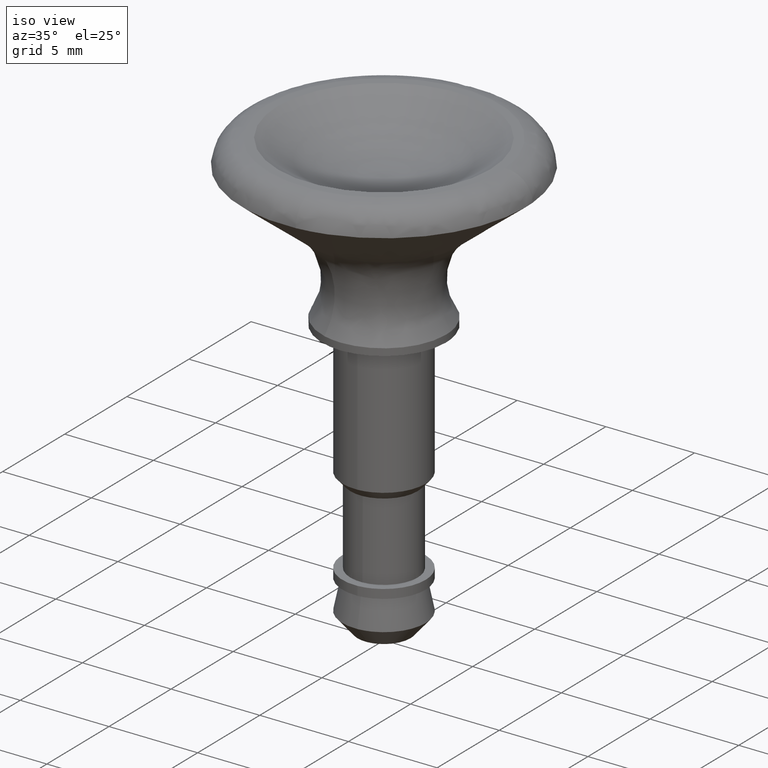
[diagram: clean part render]
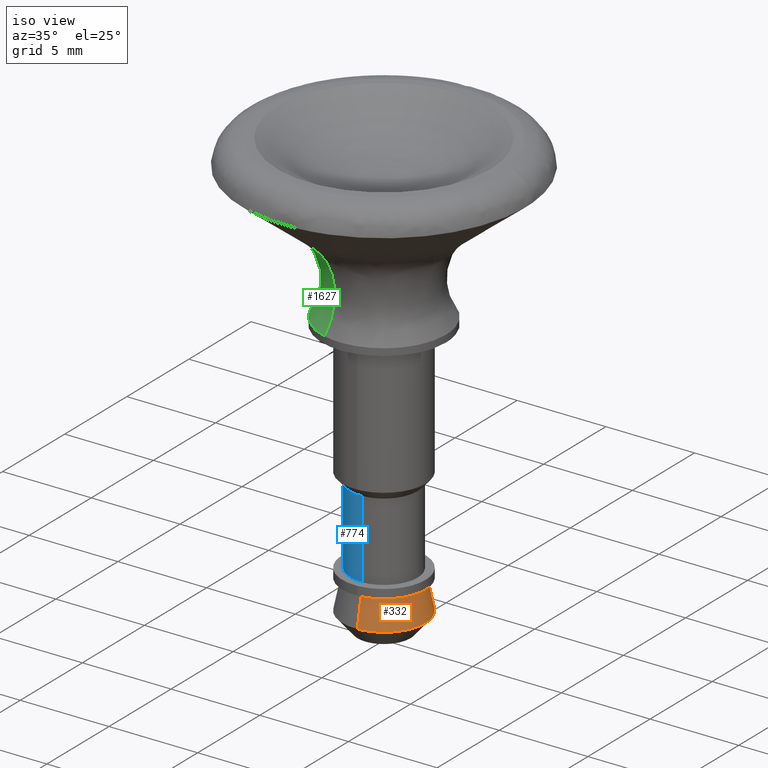
[diagram: same view with three faces highlighted in distinct colors, each labeled with its STEP entity id]
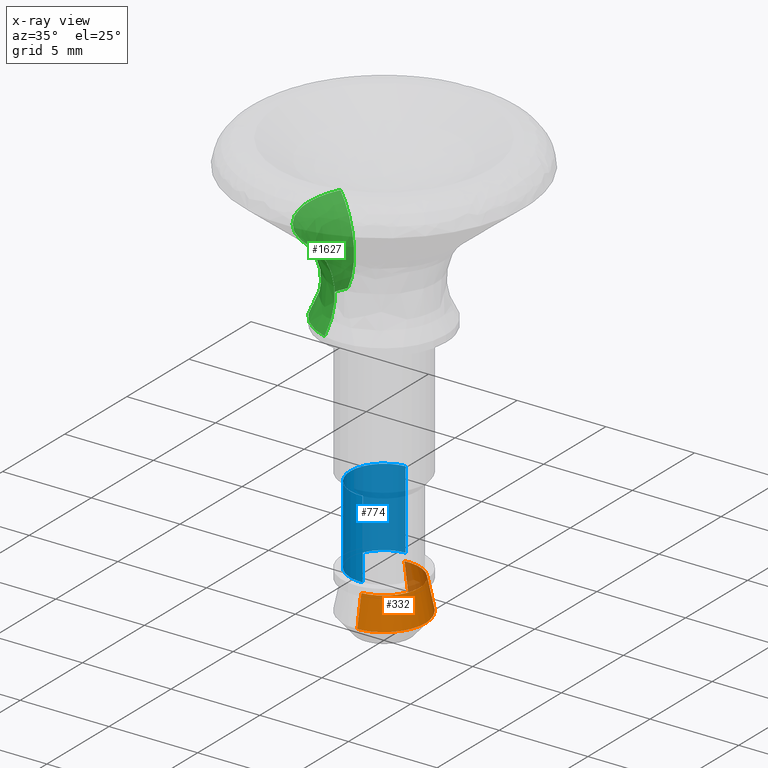
[diagram: x-ray of the same camera — body ghosted, the three highlighted faces saturated]
A machine part, iso view with three faces highlighted in distinct colors.
The next image is the same camera in x-ray (body ghosted, the three faces saturated) — at least one of them is partly hidden behind the body in this view.
Their STEP definitions:

[orange] entity #332 — the highlighted face is a freeform B-spline surface patch.
#66=CARTESIAN_POINT('',(-0.277378149973550,2.333553024648988,-14.599905292484410));
#67=VERTEX_POINT('',#66);
#68=CARTESIAN_POINT('',(1.981127676719001,1.263938877266958,-14.599905292478541));
#69=VERTEX_POINT('',#68);
#70=CARTESIAN_POINT('',(-0.277378149973550,2.333553024648988,-14.599905292484408));
#71=CARTESIAN_POINT('',(-0.139175526427716,2.349980501392760,-14.599905292479223));
#72=CARTESIAN_POINT('',(0.0,2.349980501392760,-14.599905292479219));
#73=CARTESIAN_POINT('',(1.288244402607218,2.349980501392760,-14.599905292479225));
#74=CARTESIAN_POINT('',(1.981127676719000,1.263938877266957,-14.599905292478535));
#82=(BOUNDED_CURVE()B_SPLINE_CURVE(2,(#70,#71,#72,#73,#74),.UNSPECIFIED.,.F.,.U.)B_SPLINE_CURVE_WITH_KNOTS((3,2,3),(0.229562473510832,0.250000000000000,0.407950112626115),.UNSPECIFIED.)CURVE()GEOMETRIC_REPRESENTATION_ITEM()RATIONAL_B_SPLINE_CURVE((0.956026754178453,0.976055948328009,1.0,0.814949932403960,0.863729296954037))REPRESENTATION_ITEM(''));
#83=EDGE_CURVE('',#67,#69,#82,.T.);
#126=CARTESIAN_POINT('',(0.184377345212198,-2.342736295777558,-14.599905292465481));
#127=VERTEX_POINT('',#126);
#133=CARTESIAN_POINT('',(0.143462755416546,-2.345597308412887,-14.599905228921770));
#134=VERTEX_POINT('',#133);
#135=CARTESIAN_POINT('',(0.184377345212198,-2.342736295777558,-14.599905292465481));
#136=CARTESIAN_POINT('',(0.163932474098309,-2.344345342019967,-14.599905292479219));
#137=CARTESIAN_POINT('',(0.143462755416546,-2.345597308412887,-14.599905228921774));
#145=(BOUNDED_CURVE()B_SPLINE_CURVE(2,(#135,#136,#137),.UNSPECIFIED.,.F.,.U.)B_SPLINE_CURVE_WITH_KNOTS((3,3),(0.736331300619020,0.739332980092524),.UNSPECIFIED.)CURVE()GEOMETRIC_REPRESENTATION_ITEM()RATIONAL_B_SPLINE_CURVE((0.969723356143126,0.972855494176993,0.976072079930343))REPRESENTATION_ITEM(''));
#146=EDGE_CURVE('',#127,#134,#145,.T.);
#199=CARTESIAN_POINT('',(2.349980501392760,0.0,-14.599905292479219));
#200=VERTEX_POINT('',#199);
#201=CARTESIAN_POINT('',(1.981127676719000,1.263938877266958,-14.599905292478542));
#202=CARTESIAN_POINT('',(2.349980501392760,0.685790239912795,-14.599905292479221));
#203=CARTESIAN_POINT('',(2.349980501392760,0.0,-14.599905292479219));
#211=(BOUNDED_CURVE()B_SPLINE_CURVE(2,(#201,#202,#203),.UNSPECIFIED.,.F.,.U.)B_SPLINE_CURVE_WITH_KNOTS((3,3),(0.407950112626114,0.500000000000000),.UNSPECIFIED.)CURVE()GEOMETRIC_REPRESENTATION_ITEM()RATIONAL_B_SPLINE_CURVE((0.863729296954037,0.892156848782587,1.0))REPRESENTATION_ITEM(''));
#212=EDGE_CURVE('',#69,#200,#211,.T.);
#214=CARTESIAN_POINT('',(2.349980501392760,0.0,-14.599905292479219));
#215=CARTESIAN_POINT('',(2.349980501392760,-2.172299630894904,-14.599905292479216));
#216=CARTESIAN_POINT('',(0.184377345212198,-2.342736295777558,-14.599905292465479));
#224=(BOUNDED_CURVE()B_SPLINE_CURVE(2,(#214,#215,#216),.UNSPECIFIED.,.F.,.U.)B_SPLINE_CURVE_WITH_KNOTS((3,3),(0.500000000000000,0.736331300619019),.UNSPECIFIED.)CURVE()GEOMETRIC_REPRESENTATION_ITEM()RATIONAL_B_SPLINE_CURVE((1.0,0.723120658621303,0.969723356143125))REPRESENTATION_ITEM(''));
#225=EDGE_CURVE('',#200,#127,#224,.T.);
#260=CARTESIAN_POINT('',(-0.235035727297850,1.977330703429219,-12.857502367688026));
#261=CARTESIAN_POINT('',(-0.178445372084433,1.984057324966305,-12.857502367688021));
#262=CARTESIAN_POINT('',(-0.121562934107821,1.987536403913502,-12.857502367688021));
#263=CARTESIAN_POINT('',(1.865973469805680,2.109099338021323,-12.857502367688017));
#264=CARTESIAN_POINT('',(1.987536403913502,0.121562934107821,-12.857502367688021));
#265=CARTESIAN_POINT('',(2.109099338021323,-1.865973469805680,-12.857502367688017));
#266=CARTESIAN_POINT('',(0.121562934107821,-1.987536403913502,-12.857502367688021));
#267=CARTESIAN_POINT('',(-0.278436710506259,2.342458582682443,-14.643465365599006));
#268=CARTESIAN_POINT('',(-0.211396552258161,2.350427321712631,-14.643465365599006));
#269=CARTESIAN_POINT('',(-0.144010376131359,2.354548836806468,-14.643465365599001));
#270=CARTESIAN_POINT('',(2.210538460675109,2.498559212937826,-14.643465365598999));
#271=CARTESIAN_POINT('',(2.354548836806468,0.144010376131359,-14.643465365599001));
#272=CARTESIAN_POINT('',(2.498559212937826,-2.210538460675109,-14.643465365598999));
#273=CARTESIAN_POINT('',(0.144010376131359,-2.354548836806468,-14.643465365599001));
#281=(BOUNDED_SURFACE()B_SPLINE_SURFACE(2,1,((#260,#267),(#261,#268),(#262,#269),(#263,#270),(#264,#271),(#265,#272),(#266,#273)),.UNSPECIFIED.,.F.,.F.,.U.)B_SPLINE_SURFACE_WITH_KNOTS((3,2,2,3),(2,2),(0.0,0.156337370546270,4.064771634203009,7.973205897859748),(0.0,1.0),.UNSPECIFIED.)GEOMETRIC_REPRESENTATION_ITEM()RATIONAL_B_SPLINE_SURFACE(((0.977505800795127,0.977505800795127),(0.988284271247462,0.988284271247462),(1.0,1.0),(0.707106781186548,0.707106781186548),(1.0,1.0),(0.707106781186548,0.707106781186548),(1.0,1.0)))REPRESENTATION_ITEM('')SURFACE());
#282=ORIENTED_EDGE('',*,*,#83,.F.);
#283=CARTESIAN_POINT('',(-0.236068469326977,1.986019052726167,-12.900000000002100));
#284=VERTEX_POINT('',#283);
#285=CARTESIAN_POINT('',(-0.236068469326977,1.986019052726167,-12.900000000002100));
#286=CARTESIAN_POINT('',(-0.277378149973550,2.333553024648988,-14.599905292484410));
#287=QUASI_UNIFORM_CURVE('',1,(#285,#286),.UNSPECIFIED.,.F.,.U.);
#288=EDGE_CURVE('',#284,#67,#287,.T.);
#289=ORIENTED_EDGE('',*,*,#288,.F.);
#290=CARTESIAN_POINT('',(2.0,0.0,-12.900000000000000));
#291=VERTEX_POINT('',#290);
#292=CARTESIAN_POINT('',(-0.236068469326977,1.986019052726167,-12.900000000002100));
#293=CARTESIAN_POINT('',(-0.118448239317371,2.000000000000000,-12.900000000000000));
#294=CARTESIAN_POINT('',(0.0,2.0,-12.900000000000000));
#295=CARTESIAN_POINT('',(2.000000000000000,2.000000000000000,-12.900000000000002));
#296=CARTESIAN_POINT('',(2.0,0.0,-12.900000000000000));
#304=(BOUNDED_CURVE()B_SPLINE_CURVE(2,(#292,#293,#294,#295,#296),.UNSPECIFIED.,.F.,.U.)B_SPLINE_CURVE_WITH_KNOTS((3,2,3),(0.229562473513362,0.250000000000000,0.500000000000000),.UNSPECIFIED.)CURVE()GEOMETRIC_REPRESENTATION_ITEM()RATIONAL_B_SPLINE_CURVE((0.956026754183413,0.976055948330974,1.0,0.707106781186548,1.0))REPRESENTATION_ITEM(''));
#305=EDGE_CURVE('',#284,#291,#304,.T.);
#306=ORIENTED_EDGE('',*,*,#305,.T.);
#307=CARTESIAN_POINT('',(0.122097079114306,-1.996269596842351,-12.900000000006520));
#308=VERTEX_POINT('',#307);
#309=CARTESIAN_POINT('',(2.0,0.0,-12.900000000000000));
#310=CARTESIAN_POINT('',(2.0,-1.881412133727328,-12.899999999999999));
#311=CARTESIAN_POINT('',(0.122097079114306,-1.996269596842351,-12.900000000006520));
#319=(BOUNDED_CURVE()B_SPLINE_CURVE(2,(#309,#310,#311),.UNSPECIFIED.,.F.,.U.)B_SPLINE_CURVE_WITH_KNOTS((3,3),(0.500000000000000,0.739332962234273),.UNSPECIFIED.)CURVE()GEOMETRIC_REPRESENTATION_ITEM()RATIONAL_B_SPLINE_CURVE((1.0,0.719603993292181,0.976072041656710))REPRESENTATION_ITEM(''));
#320=EDGE_CURVE('',#291,#308,#319,.T.);
#321=ORIENTED_EDGE('',*,*,#320,.T.);
#322=CARTESIAN_POINT('',(0.122097079114306,-1.996269596842351,-12.900000000006520));
#323=CARTESIAN_POINT('',(0.143462755416546,-2.345597308412887,-14.599905228921770));
#324=QUASI_UNIFORM_CURVE('',1,(#322,#323),.UNSPECIFIED.,.F.,.U.);
#325=EDGE_CURVE('',#308,#134,#324,.T.);
#326=ORIENTED_EDGE('',*,*,#325,.T.);
#327=ORIENTED_EDGE('',*,*,#146,.F.);
#328=ORIENTED_EDGE('',*,*,#225,.F.);
#329=ORIENTED_EDGE('',*,*,#212,.F.);
#330=EDGE_LOOP('',(#282,#289,#306,#321,#326,#327,#328,#329));
#331=FACE_OUTER_BOUND('',#330,.T.);
#332=ADVANCED_FACE('',(#331),#281,.T.);

[blue] entity #774 — the highlighted face is a freeform B-spline surface patch.
#592=CARTESIAN_POINT('',(-0.115992225133933,1.896456117000464,-8.0));
#593=VERTEX_POINT('',#592);
#626=CARTESIAN_POINT('',(0.132532253520675,-1.895299525548260,-7.999999999997035));
#627=VERTEX_POINT('',#626);
#641=CARTESIAN_POINT('',(0.115992225133933,-1.896456117000464,-12.400000000000000));
#642=VERTEX_POINT('',#641);
#643=CARTESIAN_POINT('',(0.132532253520675,-1.895299525548260,-7.999999999997035));
#644=CARTESIAN_POINT('',(0.115992225133933,-1.896456117000464,-12.400000000000000));
#645=QUASI_UNIFORM_CURVE('',1,(#643,#644),.UNSPECIFIED.,.F.,.U.);
#646=EDGE_CURVE('',#627,#642,#645,.T.);
#663=CARTESIAN_POINT('',(-0.115992225133933,1.896456117000464,-12.400000000000000));
#664=VERTEX_POINT('',#663);
#680=CARTESIAN_POINT('',(-0.115992225133933,1.896456117000464,-8.0));
#681=CARTESIAN_POINT('',(-0.115992225133933,1.896456117000464,-12.400000000000000));
#682=QUASI_UNIFORM_CURVE('',1,(#680,#681),.UNSPECIFIED.,.F.,.U.);
#683=EDGE_CURVE('',#593,#664,#682,.T.);
#688=CARTESIAN_POINT('',(0.159035272104546,-1.893823491468481,-7.889999999999999));
#689=CARTESIAN_POINT('',(0.137615390751131,-1.895133587535368,-7.889999999999999));
#690=CARTESIAN_POINT('',(-1.780463891885319,-2.012448342117775,-7.889999999999999));
#691=CARTESIAN_POINT('',(-1.896456117001547,-0.115992225116228,-7.890000000000000));
#692=CARTESIAN_POINT('',(-2.012448342117775,1.780463891885319,-7.889999999999999));
#693=CARTESIAN_POINT('',(-0.102580287315947,1.897276426258707,-7.890000000000000));
#694=CARTESIAN_POINT('',(-0.089246696850553,1.898091943587583,-7.889999999999997));
#695=CARTESIAN_POINT('',(0.159035272104546,-1.893823491468481,-12.512750000000008));
#696=CARTESIAN_POINT('',(0.137615390751131,-1.895133587535368,-12.512750000000002));
#697=CARTESIAN_POINT('',(-1.780463891885319,-2.012448342117775,-12.512750000000002));
#698=CARTESIAN_POINT('',(-1.896456117001547,-0.115992225116228,-12.512750000000000));
#699=CARTESIAN_POINT('',(-2.012448342117775,1.780463891885319,-12.512750000000002));
#700=CARTESIAN_POINT('',(-0.102580287315947,1.897276426258707,-12.512750000000000));
#701=CARTESIAN_POINT('',(-0.089246696850553,1.898091943587583,-12.512750000000000));
#709=(BOUNDED_SURFACE()B_SPLINE_SURFACE(2,1,((#688,#695),(#689,#696),(#690,#697),(#691,#698),(#692,#699),(#693,#700),(#694,#701)),.UNSPECIFIED.,.F.,.F.,.U.)B_SPLINE_SURFACE_WITH_KNOTS((3,1,2,1,3),(2,2),(0.0,0.051001779887963,3.199024853923485,6.347047927959006,6.378625280111240),(0.0,4.622750000000004),.UNSPECIFIED.)GEOMETRIC_REPRESENTATION_ITEM()RATIONAL_B_SPLINE_SURFACE(((1.009490448529306,1.009490448529306),(1.004745224264653,1.004745224264653),(0.707106781186548,0.707106781186548),(1.0,1.0),(0.707106781186548,0.707106781186548),(1.002937968399837,1.002937968399837),(1.005875936799674,1.005875936799674)))REPRESENTATION_ITEM('')SURFACE());
#710=CARTESIAN_POINT('',(-1.900000000000000,0.0,-8.0));
#711=VERTEX_POINT('',#710);
#712=CARTESIAN_POINT('',(-1.900000000000000,0.0,-8.0));
#713=CARTESIAN_POINT('',(-1.900000000000001,1.787341527087385,-8.0));
#714=CARTESIAN_POINT('',(-0.115992225133933,1.896456117000464,-8.000000000000002));
#722=(BOUNDED_CURVE()B_SPLINE_CURVE(2,(#712,#713,#714),.UNSPECIFIED.,.F.,.U.)B_SPLINE_CURVE_WITH_KNOTS((3,3),(0.0,0.239332962238747),.UNSPECIFIED.)CURVE()GEOMETRIC_REPRESENTATION_ITEM()RATIONAL_B_SPLINE_CURVE((1.0,0.719603993286940,0.976072041666297))REPRESENTATION_ITEM(''));
#723=EDGE_CURVE('',#711,#593,#722,.T.);
#724=ORIENTED_EDGE('',*,*,#723,.T.);
#725=ORIENTED_EDGE('',*,*,#683,.T.);
#726=CARTESIAN_POINT('',(-1.900000000000000,0.0,-12.400000000000000));
#727=VERTEX_POINT('',#726);
#728=CARTESIAN_POINT('',(-1.900000000000000,0.0,-12.400000000000000));
#729=CARTESIAN_POINT('',(-1.900000000000001,1.787341527087385,-12.400000000000000));
#730=CARTESIAN_POINT('',(-0.115992225133933,1.896456117000464,-12.400000000000002));
#738=(BOUNDED_CURVE()B_SPLINE_CURVE(2,(#728,#729,#730),.UNSPECIFIED.,.F.,.U.)B_SPLINE_CURVE_WITH_KNOTS((3,3),(0.0,0.239332962238747),.UNSPECIFIED.)CURVE()GEOMETRIC_REPRESENTATION_ITEM()RATIONAL_B_SPLINE_CURVE((1.0,0.719603993286940,0.976072041666297))REPRESENTATION_ITEM(''));
#739=EDGE_CURVE('',#727,#664,#738,.T.);
#740=ORIENTED_EDGE('',*,*,#739,.F.);
#741=CARTESIAN_POINT('',(0.115992225133933,-1.896456117000464,-12.399999999999999));
#742=CARTESIAN_POINT('',(0.058050250285074,-1.900000000000000,-12.400000000000000));
#743=CARTESIAN_POINT('',(0.0,-1.900000000000000,-12.400000000000000));
#744=CARTESIAN_POINT('',(-1.900000000000000,-1.900000000000000,-12.399999999999999));
#745=CARTESIAN_POINT('',(-1.900000000000000,0.0,-12.400000000000000));
#753=(BOUNDED_CURVE()B_SPLINE_CURVE(2,(#741,#742,#743,#744,#745),.UNSPECIFIED.,.F.,.U.)B_SPLINE_CURVE_WITH_KNOTS((3,2,3),(0.739332962238747,0.750000000000000,1.0),.UNSPECIFIED.)CURVE()GEOMETRIC_REPRESENTATION_ITEM()RATIONAL_B_SPLINE_CURVE((0.976072041666297,0.987502787899607,1.0,0.707106781186547,1.0))REPRESENTATION_ITEM(''));
#754=EDGE_CURVE('',#642,#727,#753,.T.);
#755=ORIENTED_EDGE('',*,*,#754,.F.);
#756=ORIENTED_EDGE('',*,*,#646,.F.);
#757=CARTESIAN_POINT('',(0.132532253520675,-1.895299525548260,-7.999999999997036));
#758=CARTESIAN_POINT('',(0.066344497600043,-1.899929005132298,-7.999999999997083));
#759=CARTESIAN_POINT('',(-0.000004876328981,-1.899930265247286,-7.999999999997136));
#760=CARTESIAN_POINT('',(-1.900002353021910,-1.899966350219257,-7.999999999998617));
#761=CARTESIAN_POINT('',(-1.900000000000000,0.0,-8.0));
#769=(BOUNDED_CURVE()B_SPLINE_CURVE(2,(#757,#758,#759,#760,#761),.UNSPECIFIED.,.F.,.U.)B_SPLINE_CURVE_WITH_KNOTS((3,2,3),(0.737829682995063,0.750000000000000,1.0),.UNSPECIFIED.)CURVE()GEOMETRIC_REPRESENTATION_ITEM()RATIONAL_B_SPLINE_CURVE((0.972871408704998,0.985741586713776,1.0,0.707106781186547,1.0))REPRESENTATION_ITEM(''));
#770=EDGE_CURVE('',#627,#711,#769,.T.);
#771=ORIENTED_EDGE('',*,*,#770,.T.);
#772=EDGE_LOOP('',(#724,#725,#740,#755,#756,#771));
#773=FACE_OUTER_BOUND('',#772,.T.);
#774=ADVANCED_FACE('',(#773),#709,.T.);

[green] entity #1627 — the highlighted face is a freeform B-spline surface patch.
#1107=CARTESIAN_POINT('',(-0.997566883735898,-3.354829059136927,0.399404462662841));
#1108=VERTEX_POINT('',#1107);
#1124=CARTESIAN_POINT('',(-3.500000000000000,0.0,0.399408205773472));
#1125=VERTEX_POINT('',#1124);
#1126=CARTESIAN_POINT('',(-0.997566883735898,-3.354829059136927,0.399404462662841));
#1127=CARTESIAN_POINT('',(-3.500000360417596,-2.610722832865418,0.399406334218156));
#1128=CARTESIAN_POINT('',(-3.500000000000000,0.0,0.399408205773472));
#1136=(BOUNDED_CURVE()B_SPLINE_CURVE(2,(#1126,#1127,#1128),.UNSPECIFIED.,.F.,.U.)B_SPLINE_CURVE_WITH_KNOTS((3,3),(0.798526601958610,1.0),.UNSPECIFIED.)CURVE()GEOMETRIC_REPRESENTATION_ITEM()RATIONAL_B_SPLINE_CURVE((0.908365948752589,0.763959231769494,1.0))REPRESENTATION_ITEM(''));
#1137=EDGE_CURVE('',#1108,#1125,#1136,.T.);
#1139=CARTESIAN_POINT('',(-3.129216533275979,1.567793377448858,0.399414086500063));
#1140=VERTEX_POINT('',#1139);
#1141=CARTESIAN_POINT('',(-3.500000000000000,0.0,0.399408205773472));
#1142=CARTESIAN_POINT('',(-3.499998223783439,0.827740983115529,0.399411146136767));
#1143=CARTESIAN_POINT('',(-3.129216533275980,1.567793377448858,0.399414086500063));
#1151=(BOUNDED_CURVE()B_SPLINE_CURVE(2,(#1141,#1142,#1143),.UNSPECIFIED.,.F.,.U.)B_SPLINE_CURVE_WITH_KNOTS((3,3),(0.0,0.076154426727740),.UNSPECIFIED.)CURVE()GEOMETRIC_REPRESENTATION_ITEM()RATIONAL_B_SPLINE_CURVE((1.0,0.910779539315276,0.875915342917192))REPRESENTATION_ITEM(''));
#1152=EDGE_CURVE('',#1125,#1140,#1151,.T.);
#1310=CARTESIAN_POINT('',(-3.774731242995889,1.891213378364719,5.098999999939057));
#1311=VERTEX_POINT('',#1310);
#1327=CARTESIAN_POINT('',(-4.222000000000000,0.0,5.098999999999791));
#1328=VERTEX_POINT('',#1327);
#1329=CARTESIAN_POINT('',(-4.222000000000000,0.0,5.098999999999791));
#1330=CARTESIAN_POINT('',(-4.222000000000002,0.998495840495915,5.098999999999792));
#1331=CARTESIAN_POINT('',(-3.774731242995889,1.891213378364719,5.098999999939057));
#1339=(BOUNDED_CURVE()B_SPLINE_CURVE(2,(#1329,#1330,#1331),.UNSPECIFIED.,.F.,.U.)B_SPLINE_CURVE_WITH_KNOTS((3,3),(0.0,0.076154610387945),.UNSPECIFIED.)CURVE()GEOMETRIC_REPRESENTATION_ITEM()RATIONAL_B_SPLINE_CURVE((1.0,0.910779324143961,0.875915174754849))REPRESENTATION_ITEM(''));
#1340=EDGE_CURVE('',#1328,#1311,#1339,.T.);
#1342=CARTESIAN_POINT('',(-1.203351326187270,-4.046878993161892,5.098999999955693));
#1343=VERTEX_POINT('',#1342);
#1344=CARTESIAN_POINT('',(-1.203351326187270,-4.046878993161892,5.098999999955693));
#1345=CARTESIAN_POINT('',(-4.222000000000000,-3.149274965215932,5.098999999999791));
#1346=CARTESIAN_POINT('',(-4.222000000000000,0.0,5.098999999999791));
#1354=(BOUNDED_CURVE()B_SPLINE_CURVE(2,(#1344,#1345,#1346),.UNSPECIFIED.,.F.,.U.)B_SPLINE_CURVE_WITH_KNOTS((3,3),(0.798526662068842,1.0),.UNSPECIFIED.)CURVE()GEOMETRIC_REPRESENTATION_ITEM()RATIONAL_B_SPLINE_CURVE((0.908365862584212,0.763959302193011,1.0))REPRESENTATION_ITEM(''));
#1355=EDGE_CURVE('',#1343,#1328,#1354,.T.);
#1560=CARTESIAN_POINT('',(-3.129216533275979,1.567793377448859,0.399414086500063));
#1561=CARTESIAN_POINT('',(-1.507959943233401,0.755514782807410,3.083257110274239));
#1562=CARTESIAN_POINT('',(-3.774731242995890,1.891213378364719,5.098999999939057));
#1570=(BOUNDED_CURVE()B_SPLINE_CURVE(2,(#1560,#1561,#1562),.UNSPECIFIED.,.F.,.U.)B_SPLINE_CURVE_WITH_KNOTS((3,3),(-1.716609628168928,-0.279914672506746),.UNSPECIFIED.)CURVE()GEOMETRIC_REPRESENTATION_ITEM()RATIONAL_B_SPLINE_CURVE((0.833550409035595,0.612198644132615,0.834624009151292))REPRESENTATION_ITEM(''));
#1571=EDGE_CURVE('',#1140,#1311,#1570,.T.);
#1577=CARTESIAN_POINT('',(-0.997566883735898,-3.354829059136927,0.399404462662841));
#1578=CARTESIAN_POINT('',(-0.480721119879357,-1.616670813284576,3.083250401651951));
#1579=CARTESIAN_POINT('',(-1.203351326187270,-4.046878993161892,5.098999999955693));
#1587=(BOUNDED_CURVE()B_SPLINE_CURVE(2,(#1577,#1578,#1579),.UNSPECIFIED.,.F.,.U.)B_SPLINE_CURVE_WITH_KNOTS((3,3),(-1.716613135412985,-0.279914672490580),.UNSPECIFIED.)CURVE()GEOMETRIC_REPRESENTATION_ITEM()RATIONAL_B_SPLINE_CURVE((0.888514127667537,0.652565160619895,0.889657366743210))REPRESENTATION_ITEM(''));
#1588=EDGE_CURVE('',#1108,#1343,#1587,.T.);
#1596=CARTESIAN_POINT('',(-1.036804995532831,-3.486782509252224,0.209677490706457));
#1597=CARTESIAN_POINT('',(-4.523587504785054,-2.449977513719393,0.209677490706457));
#1598=CARTESIAN_POINT('',(-3.486782509252224,1.036804995532831,0.209677490706457));
#1599=CARTESIAN_POINT('',(-3.395602038030573,1.343445563055982,0.209677490706457));
#1600=CARTESIAN_POINT('',(-3.252300855827026,1.629464945549876,0.209677490706457));
#1601=CARTESIAN_POINT('',(-0.388646852826860,-1.307022105942109,3.132650408479213));
#1602=CARTESIAN_POINT('',(-1.695668958768968,-0.918375253115248,3.132650408479213));
#1603=CARTESIAN_POINT('',(-1.307022105942109,0.388646852826860,3.132650408479213));
#1604=CARTESIAN_POINT('',(-1.272843062310714,0.503591217514908,3.132650408479214));
#1605=CARTESIAN_POINT('',(-1.219126545019865,0.610805721045156,3.132650408479212));
#1606=CARTESIAN_POINT('',(-1.256937794033767,-4.227090662504655,5.238476977363853));
#1607=CARTESIAN_POINT('',(-5.484028456538420,-2.970152868470889,5.238476977363852));
#1608=CARTESIAN_POINT('',(-4.227090662504654,1.256937794033767,5.238476977363853));
#1609=CARTESIAN_POINT('',(-4.116550897698255,1.628683802361720,5.238476977363853));
#1610=CARTESIAN_POINT('',(-3.942824234904938,1.975430368236451,5.238476977363852));
#1618=(BOUNDED_SURFACE()B_SPLINE_SURFACE(2,2,((#1596,#1601,#1606),(#1597,#1602,#1607),(#1598,#1603,#1608),(#1599,#1604,#1609),(#1600,#1605,#1610)),.UNSPECIFIED.,.F.,.F.,.U.)B_SPLINE_SURFACE_WITH_KNOTS((3,2,3),(3,3),(0.0,7.306743787577516,8.183552205896351),(0.0,6.032075880484901),.UNSPECIFIED.)GEOMETRIC_REPRESENTATION_ITEM()RATIONAL_B_SPLINE_SURFACE(((0.913265683283735,0.627756502513760,0.914523127318716),(0.645776357674895,0.443890879861430,0.646665504878992),(0.913265683283735,0.627756502513760,0.914523127318716),(0.881166994822398,0.605692648837231,0.882380243279821),(0.856771984244975,0.588924114993054,0.857951644053339)))REPRESENTATION_ITEM('')SURFACE());
#1619=ORIENTED_EDGE('',*,*,#1152,.F.);
#1620=ORIENTED_EDGE('',*,*,#1137,.F.);
#1621=ORIENTED_EDGE('',*,*,#1588,.T.);
#1622=ORIENTED_EDGE('',*,*,#1355,.T.);
#1623=ORIENTED_EDGE('',*,*,#1340,.T.);
#1624=ORIENTED_EDGE('',*,*,#1571,.F.);
#1625=EDGE_LOOP('',(#1619,#1620,#1621,#1622,#1623,#1624));
#1626=FACE_OUTER_BOUND('',#1625,.T.);
#1627=ADVANCED_FACE('',(#1626),#1618,.F.);